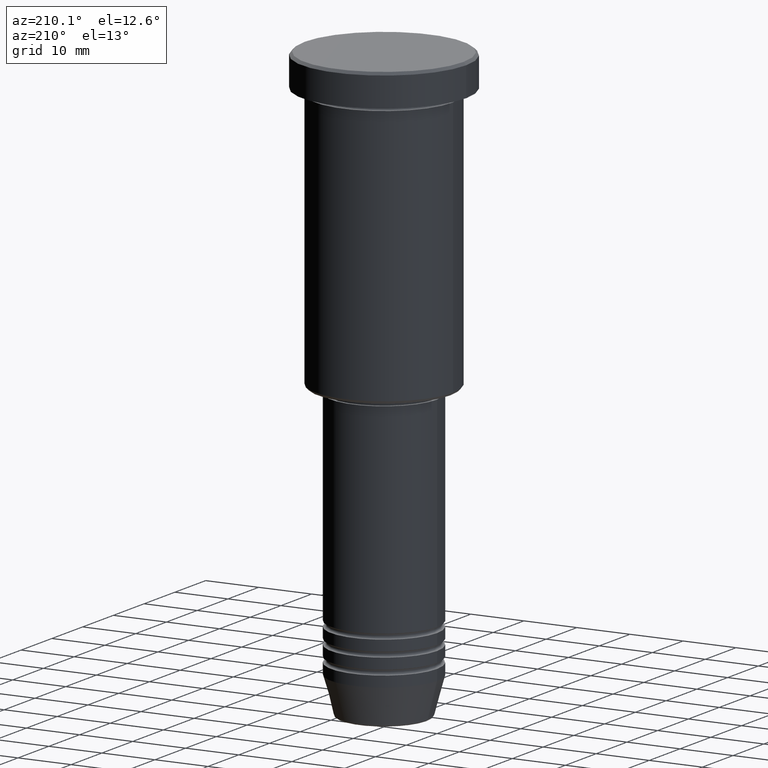
[diagram: clean part render]
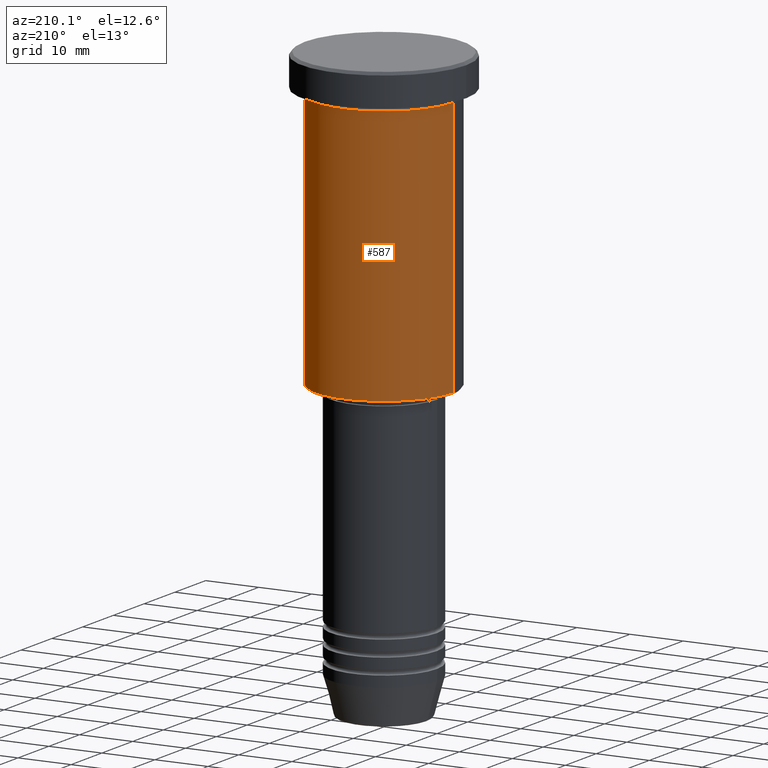
[diagram: same view with one face highlighted and labeled with its STEP entity id]
A machine part, auxiliary view. The second image highlights one B-rep face of the part: STEP entity #587.
In plain terms, the highlighted cylindrical surface (partial cylindrical patch) has radius 13 mm, axis along (-0, -0, 1).
Its self-contained STEP definition (entity closure, byte-faithful):
#4 = ORIENTED_EDGE ( 'NONE', *, *, #633, .F. ) ;
#25 = CARTESIAN_POINT ( 'NONE',  ( 0.000000000000000000, 0.000000000000000000, 0.000000000000000000 ) ) ;
#52 = ORIENTED_EDGE ( 'NONE', *, *, #79, .F. ) ;
#79 = EDGE_CURVE ( 'NONE', #990, #440, #255, .T. ) ;
#88 = CARTESIAN_POINT ( 'NONE',  ( 13.00000000000000000, 0.000000000000000000, -6.999999999999995559 ) ) ;
#147 = CARTESIAN_POINT ( 'NONE',  ( 13.00000000000000000, 0.000000000000000000, -55.49999999999997868 ) ) ;
#165 = DIRECTION ( 'NONE',  ( -0.000000000000000000, -0.000000000000000000, 1.000000000000000000 ) ) ;
#191 = ORIENTED_EDGE ( 'NONE', *, *, #505, .T. ) ;
#209 = CIRCLE ( 'NONE', #950, 13.00000000000000000 ) ;
#255 = LINE ( 'NONE', #334, #699 ) ;
#279 = CARTESIAN_POINT ( 'NONE',  ( 0.000000000000000000, 0.000000000000000000, -55.49999999999997868 ) ) ;
#300 = CARTESIAN_POINT ( 'NONE',  ( 0.000000000000000000, 0.000000000000000000, -6.999999999999995559 ) ) ;
#308 = DIRECTION ( 'NONE',  ( -0.000000000000000000, -0.000000000000000000, 1.000000000000000000 ) ) ;
#311 = EDGE_CURVE ( 'NONE', #710, #657, #324, .T. ) ;
#324 = LINE ( 'NONE', #1126, #828 ) ;
#334 = CARTESIAN_POINT ( 'NONE',  ( 13.00000000000000000, 0.000000000000000000, 0.000000000000000000 ) ) ;
#386 = DIRECTION ( 'NONE',  ( 1.000000000000000000, 0.000000000000000000, 0.000000000000000000 ) ) ;
#392 = AXIS2_PLACEMENT_3D ( 'NONE', #300, #838, #386 ) ;
#440 = VERTEX_POINT ( 'NONE', #88 ) ;
#505 = EDGE_CURVE ( 'NONE', #990, #710, #209, .T. ) ;
#520 = CARTESIAN_POINT ( 'NONE',  ( -13.00000000000000000, 1.592040838891559095E-15, -55.49999999999997868 ) ) ;
#587 = ADVANCED_FACE ( 'NONE', ( #759 ), #1129, .T. ) ;
#611 = DIRECTION ( 'NONE',  ( -0.000000000000000000, -0.000000000000000000, 1.000000000000000000 ) ) ;
#633 = EDGE_CURVE ( 'NONE', #440, #657, #755, .T. ) ;
#657 = VERTEX_POINT ( 'NONE', #874 ) ;
#699 = VECTOR ( 'NONE', #611, 1000.000000000000000 ) ;
#710 = VERTEX_POINT ( 'NONE', #520 ) ;
#755 = CIRCLE ( 'NONE', #392, 13.00000000000000000 ) ;
#759 = FACE_OUTER_BOUND ( 'NONE', #902, .T. ) ;
#819 = DIRECTION ( 'NONE',  ( -1.000000000000000000, 0.000000000000000000, 0.000000000000000000 ) ) ;
#828 = VECTOR ( 'NONE', #1054, 1000.000000000000000 ) ;
#838 = DIRECTION ( 'NONE',  ( -0.000000000000000000, -0.000000000000000000, 1.000000000000000000 ) ) ;
#874 = CARTESIAN_POINT ( 'NONE',  ( -13.00000000000000000, 1.592040838891559095E-15, -6.999999999999995559 ) ) ;
#902 = EDGE_LOOP ( 'NONE', ( #191, #1181, #4, #52 ) ) ;
#910 = AXIS2_PLACEMENT_3D ( 'NONE', #25, #308, #1047 ) ;
#950 = AXIS2_PLACEMENT_3D ( 'NONE', #279, #165, #819 ) ;
#990 = VERTEX_POINT ( 'NONE', #147 ) ;
#1047 = DIRECTION ( 'NONE',  ( 1.000000000000000000, 0.000000000000000000, 0.000000000000000000 ) ) ;
#1054 = DIRECTION ( 'NONE',  ( -0.000000000000000000, -0.000000000000000000, 1.000000000000000000 ) ) ;
#1126 = CARTESIAN_POINT ( 'NONE',  ( -13.00000000000000000, 1.592040838891559095E-15, 0.000000000000000000 ) ) ;
#1129 = CYLINDRICAL_SURFACE ( 'NONE', #910, 13.00000000000000000 ) ;
#1181 = ORIENTED_EDGE ( 'NONE', *, *, #311, .T. ) ;